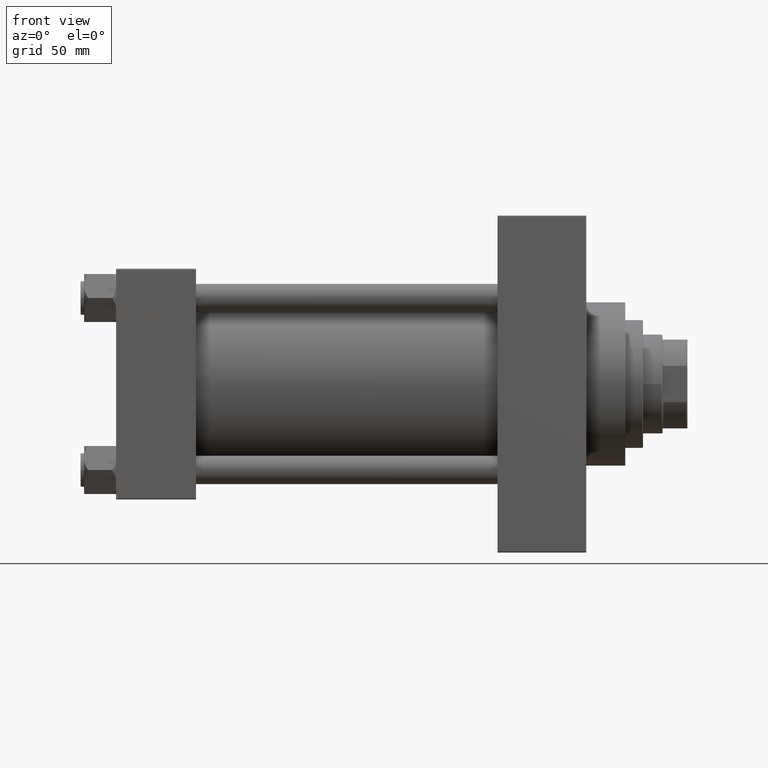
[diagram: clean part render]
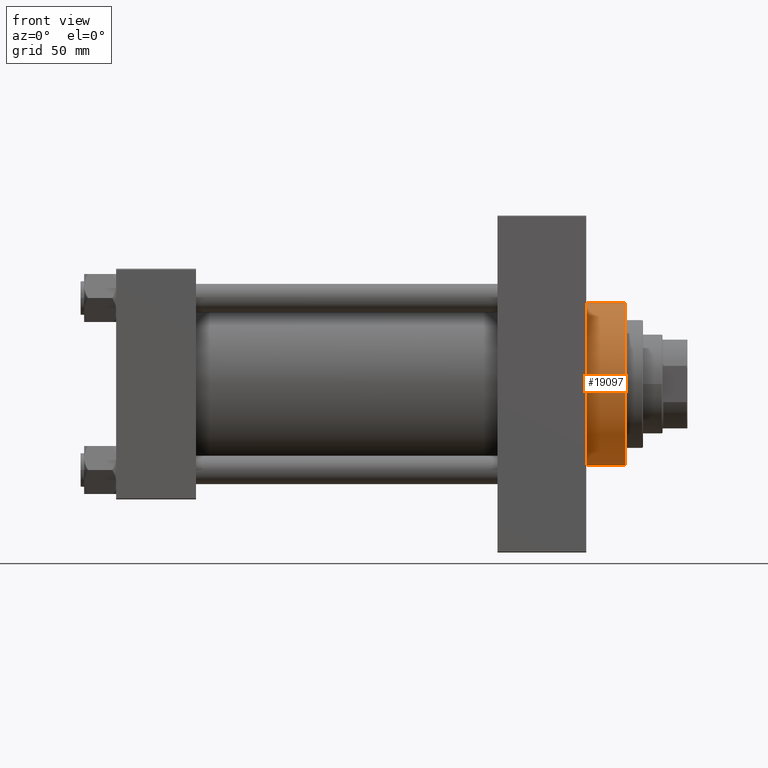
[diagram: same view with one face highlighted and labeled with its STEP entity id]
A machine part, front view. The second image highlights one B-rep face of the part: STEP entity #19097.
In plain terms, the highlighted cylindrical surface (partial cylindrical patch) has radius 46 mm, axis along (-1, -0, -0).
Its self-contained STEP definition (entity closure, byte-faithful):
#387 = CARTESIAN_POINT ( 'NONE',  ( 265.0000000000000000, 5.633375276077824704E-15, -46.00000000000000000 ) ) ;
#909 = DIRECTION ( 'NONE',  ( -1.000000000000000000, -0.000000000000000000, -0.000000000000000000 ) ) ;
#1091 = EDGE_LOOP ( 'NONE', ( #3565, #39347, #16069, #16481 ) ) ;
#1698 = DIRECTION ( 'NONE',  ( 0.000000000000000000, 0.000000000000000000, -1.000000000000000000 ) ) ;
#3473 = EDGE_CURVE ( 'NONE', #35182, #3517, #4290, .T. ) ;
#3517 = VERTEX_POINT ( 'NONE', #38548 ) ;
#3565 = ORIENTED_EDGE ( 'NONE', *, *, #4186, .F. ) ;
#4186 = EDGE_CURVE ( 'NONE', #18484, #45689, #5374, .T. ) ;
#4290 = LINE ( 'NONE', #15884, #29223 ) ;
#5374 = LINE ( 'NONE', #42061, #10723 ) ;
#6121 = DIRECTION ( 'NONE',  ( 0.000000000000000000, 0.000000000000000000, -1.000000000000000000 ) ) ;
#6575 = CARTESIAN_POINT ( 'NONE',  ( 287.0000000000000568, 0.000000000000000000, 46.00000000000000000 ) ) ;
#7099 = AXIS2_PLACEMENT_3D ( 'NONE', #31382, #42722, #1698 ) ;
#7897 = CARTESIAN_POINT ( 'NONE',  ( 287.0000000000000568, 0.000000000000000000, 0.000000000000000000 ) ) ;
#8771 = EDGE_CURVE ( 'NONE', #3517, #45689, #21670, .T. ) ;
#10723 = VECTOR ( 'NONE', #38680, 1000.000000000000000 ) ;
#15625 = CIRCLE ( 'NONE', #7099, 46.00000000000000000 ) ;
#15884 = CARTESIAN_POINT ( 'NONE',  ( 287.0000000000000568, 0.000000000000000000, 46.00000000000000000 ) ) ;
#16069 = ORIENTED_EDGE ( 'NONE', *, *, #3473, .T. ) ;
#16481 = ORIENTED_EDGE ( 'NONE', *, *, #8771, .T. ) ;
#18484 = VERTEX_POINT ( 'NONE', #31667 ) ;
#19097 = ADVANCED_FACE ( 'NONE', ( #29153 ), #25990, .T. ) ;
#21670 = CIRCLE ( 'NONE', #27861, 46.00000000000000000 ) ;
#22860 = DIRECTION ( 'NONE',  ( -1.000000000000000000, -0.000000000000000000, -0.000000000000000000 ) ) ;
#25990 = CYLINDRICAL_SURFACE ( 'NONE', #47466, 46.00000000000000000 ) ;
#27861 = AXIS2_PLACEMENT_3D ( 'NONE', #31711, #28553, #6121 ) ;
#28553 = DIRECTION ( 'NONE',  ( 1.000000000000000000, 0.000000000000000000, 0.000000000000000000 ) ) ;
#29153 = FACE_OUTER_BOUND ( 'NONE', #1091, .T. ) ;
#29223 = VECTOR ( 'NONE', #909, 1000.000000000000000 ) ;
#31382 = CARTESIAN_POINT ( 'NONE',  ( 287.0000000000000568, 0.000000000000000000, 0.000000000000000000 ) ) ;
#31667 = CARTESIAN_POINT ( 'NONE',  ( 287.0000000000000568, 5.633375276077824704E-15, -46.00000000000000000 ) ) ;
#31711 = CARTESIAN_POINT ( 'NONE',  ( 265.0000000000000000, 0.000000000000000000, 0.000000000000000000 ) ) ;
#33235 = DIRECTION ( 'NONE',  ( 0.000000000000000000, 0.000000000000000000, 1.000000000000000000 ) ) ;
#35182 = VERTEX_POINT ( 'NONE', #6575 ) ;
#38124 = EDGE_CURVE ( 'NONE', #35182, #18484, #15625, .T. ) ;
#38548 = CARTESIAN_POINT ( 'NONE',  ( 265.0000000000000000, 0.000000000000000000, 46.00000000000000000 ) ) ;
#38680 = DIRECTION ( 'NONE',  ( -1.000000000000000000, -0.000000000000000000, -0.000000000000000000 ) ) ;
#39347 = ORIENTED_EDGE ( 'NONE', *, *, #38124, .F. ) ;
#42061 = CARTESIAN_POINT ( 'NONE',  ( 287.0000000000000568, 5.633375276077824704E-15, -46.00000000000000000 ) ) ;
#42722 = DIRECTION ( 'NONE',  ( 1.000000000000000000, 0.000000000000000000, 0.000000000000000000 ) ) ;
#45689 = VERTEX_POINT ( 'NONE', #387 ) ;
#47466 = AXIS2_PLACEMENT_3D ( 'NONE', #7897, #22860, #33235 ) ;